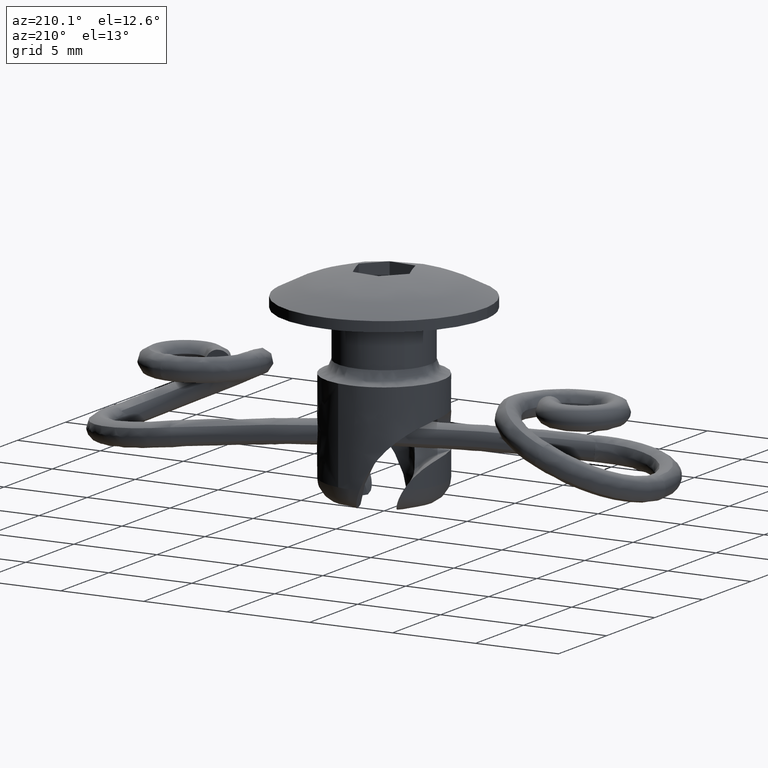
[diagram: clean part render]
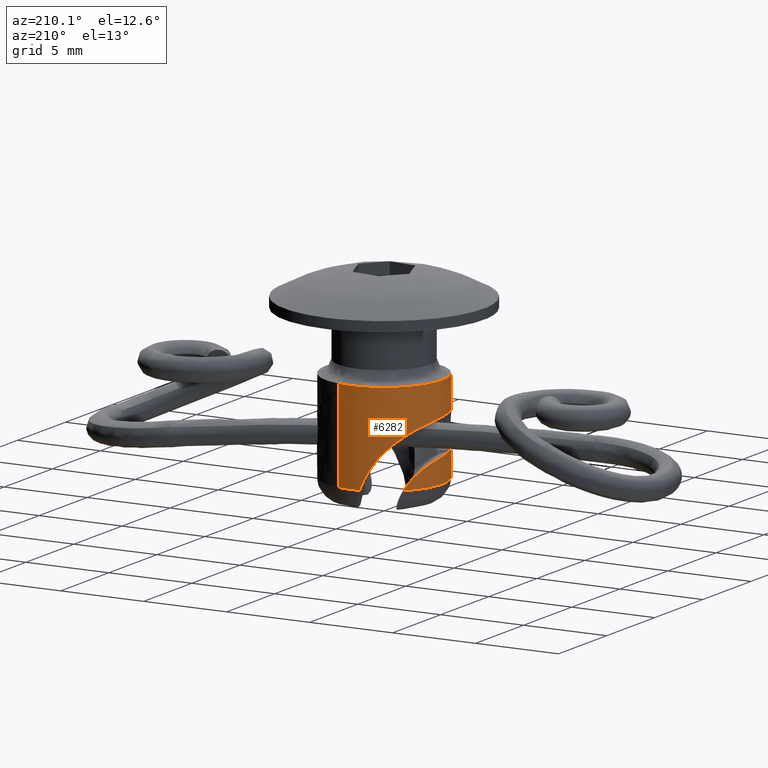
[diagram: same view with one face highlighted and labeled with its STEP entity id]
A machine part, auxiliary view. The second image highlights one B-rep face of the part: STEP entity #6282.
In plain terms, the highlighted face is a freeform B-spline surface patch.
Its self-contained STEP definition (entity closure, byte-faithful):
#5854=CARTESIAN_POINT('',(-3.408515846239265,0.794996812636851,3.251577999999965));
#5855=VERTEX_POINT('',#5854);
#5873=CARTESIAN_POINT('',(2.907825412374815,-1.947960876613850,3.251577999999967));
#5874=VERTEX_POINT('',#5873);
#5888=CARTESIAN_POINT('',(2.907823712721256,-1.947963380968242,-2.298425000000000));
#5889=VERTEX_POINT('',#5888);
#5890=CARTESIAN_POINT('',(2.907825412374815,-1.947960876613850,3.251577999999967));
#5891=CARTESIAN_POINT('',(2.907823712721256,-1.947963380968242,-2.298425000000000));
#5892=QUASI_UNIFORM_CURVE('',1,(#5890,#5891),.UNSPECIFIED.,.F.,.U.);
#5893=EDGE_CURVE('',#5874,#5889,#5892,.T.);
#6035=CARTESIAN_POINT('',(-3.408516577332525,0.794993612283438,-2.298425000000000));
#6036=VERTEX_POINT('',#6035);
#6052=CARTESIAN_POINT('',(-3.408515846239265,0.794996812636851,3.251577999999965));
#6053=CARTESIAN_POINT('',(-3.408516577332525,0.794993612283438,-2.298425000000000));
#6054=QUASI_UNIFORM_CURVE('',1,(#6052,#6053),.UNSPECIFIED.,.F.,.U.);
#6055=EDGE_CURVE('',#5855,#6036,#6054,.T.);
#6060=CARTESIAN_POINT('',(2.907824455280770,-1.947962287806331,3.390328074999983));
#6061=CARTESIAN_POINT('',(0.959862167474439,-4.855786743087101,3.390328074999983));
#6062=CARTESIAN_POINT('',(-1.947962287806331,-2.907824455280770,3.390328074999983));
#6063=CARTESIAN_POINT('',(-3.958080499734775,-1.561238878645187,3.390328074999982));
#6064=CARTESIAN_POINT('',(-3.408515836683732,0.794996810384028,3.390328074999983));
#6065=CARTESIAN_POINT('',(2.907824455280770,-1.947962287806331,-2.440643826875001));
#6066=CARTESIAN_POINT('',(0.959862167474439,-4.855786743087101,-2.440643826875000));
#6067=CARTESIAN_POINT('',(-1.947962287806331,-2.907824455280770,-2.440643826875001));
#6068=CARTESIAN_POINT('',(-3.958080499734775,-1.561238878645187,-2.440643826875001));
#6069=CARTESIAN_POINT('',(-3.408515836683732,0.794996810384028,-2.440643826875002));
#6077=(BOUNDED_SURFACE()B_SPLINE_SURFACE(2,1,((#6060,#6065),(#6061,#6066),(#6062,#6067),(#6063,#6068),(#6064,#6069)),.UNSPECIFIED.,.F.,.F.,.U.)B_SPLINE_SURFACE_WITH_KNOTS((3,2,3),(2,2),(0.0,5.798989905755564,10.206222234129790),(0.0,5.830971901874984),.UNSPECIFIED.)GEOMETRIC_REPRESENTATION_ITEM()RATIONAL_B_SPLINE_SURFACE(((1.0,1.0),(0.707106781186548,0.707106781186548),(1.0,1.0),(0.777401153701776,0.777401153701776),(0.893152553776853,0.893152553776853)))REPRESENTATION_ITEM('')SURFACE());
#6078=CARTESIAN_POINT('',(-3.500000039269895,0.0,3.251577999999965));
#6079=VERTEX_POINT('',#6078);
#6080=CARTESIAN_POINT('',(-3.500000039269895,0.0,3.251577999999965));
#6081=CARTESIAN_POINT('',(-3.500000039269895,0.402762174336322,3.251577999999965));
#6082=CARTESIAN_POINT('',(-3.408515846239265,0.794996812636851,3.251577999999965));
#6090=(BOUNDED_CURVE()B_SPLINE_CURVE(2,(#6080,#6081,#6082),.UNSPECIFIED.,.F.,.U.)B_SPLINE_CURVE_WITH_KNOTS((3,3),(0.0,0.038834074144333),.UNSPECIFIED.)CURVE()GEOMETRIC_REPRESENTATION_ITEM()RATIONAL_B_SPLINE_CURVE((1.0,0.954503052096904,0.923140758979486))REPRESENTATION_ITEM(''));
#6091=EDGE_CURVE('',#6079,#5855,#6090,.T.);
#6092=ORIENTED_EDGE('',*,*,#6091,.T.);
#6093=ORIENTED_EDGE('',*,*,#6055,.T.);
#6094=CARTESIAN_POINT('',(-3.459897316747310,-0.528309279692622,-2.298425000000000));
#6095=VERTEX_POINT('',#6094);
#6096=CARTESIAN_POINT('',(-3.459897316747310,-0.528309279692622,-2.298425000000000));
#6097=CARTESIAN_POINT('',(-3.561684013167019,0.138291800194744,-2.298425000000001));
#6098=CARTESIAN_POINT('',(-3.408516577332526,0.794993612283438,-2.298425000000001));
#6106=(BOUNDED_CURVE()B_SPLINE_CURVE(2,(#6096,#6097,#6098),.UNSPECIFIED.,.F.,.U.)B_SPLINE_CURVE_WITH_KNOTS((3,3),(0.0,0.156086623273908),.UNSPECIFIED.)CURVE()GEOMETRIC_REPRESENTATION_ITEM()RATIONAL_B_SPLINE_CURVE((1.0,0.941843152564109,0.919996328874314))REPRESENTATION_ITEM(''));
#6107=EDGE_CURVE('',#6095,#6036,#6106,.T.);
#6108=ORIENTED_EDGE('',*,*,#6107,.F.);
#6109=CARTESIAN_POINT('',(1.254288176771206,-3.267531378127195,1.351574999995246));
#6110=VERTEX_POINT('',#6109);
#6111=CARTESIAN_POINT('',(1.254288176771206,-3.267531378127195,1.351574999995246));
#6112=CARTESIAN_POINT('',(1.101160005406765,-3.326311794487662,1.351574998837264));
#6113=CARTESIAN_POINT('',(0.945762923950141,-3.373675377215122,1.349288494566302));
#6114=CARTESIAN_POINT('',(0.630633866917499,-3.446513308409384,1.339913747538645));
#6115=CARTESIAN_POINT('',(0.470901100661854,-3.471984132491330,1.332827274565041));
#6116=CARTESIAN_POINT('',(0.228032611613191,-3.493509216653556,1.317601414292670));
#6117=CARTESIAN_POINT('',(0.146192181078326,-3.497894007021392,1.311721623021134));
#6118=CARTESIAN_POINT('',(-0.016684825331217,-3.500907918636005,1.298294048865736));
#6119=CARTESIAN_POINT('',(-0.097661381558418,-3.499565850793191,1.290759077124677));
#6120=CARTESIAN_POINT('',(-0.339192328174756,-3.487254465925414,1.265360531103398));
#6121=CARTESIAN_POINT('',(-0.498356029403914,-3.468031572046396,1.244733748760221));
#6122=CARTESIAN_POINT('',(-0.734116231528175,-3.423079591665780,1.206421926317352));
#6123=CARTESIAN_POINT('',(-0.812203412832257,-3.405401099469859,1.192415497843184));
#6124=CARTESIAN_POINT('',(-0.967319985446281,-3.364628222826869,1.161525164726331));
#6125=CARTESIAN_POINT('',(-1.044455501968755,-3.341469688333355,1.144598555183151));
#6126=CARTESIAN_POINT('',(-1.270181629063231,-3.265251309077173,1.089838312734105));
#6127=CARTESIAN_POINT('',(-1.414461919028028,-3.205160989796881,1.047795469298972));
#6128=CARTESIAN_POINT('',(-1.690751086098153,-3.068406794372949,0.950297460754401));
#6129=CARTESIAN_POINT('',(-1.822783533150525,-2.991714083594022,0.894834410800318));
#6130=CARTESIAN_POINT('',(-2.074162398018134,-2.823250487177357,0.767670321400395));
#6131=CARTESIAN_POINT('',(-2.190286065450039,-2.733666603910849,0.697587030664217));
#6132=CARTESIAN_POINT('',(-2.405163610616871,-2.546659411072964,0.543378092234245));
#6133=CARTESIAN_POINT('',(-2.503908324413362,-2.449224044822806,0.459254466628814));
#6134=CARTESIAN_POINT('',(-2.639930954665946,-2.298984229476701,0.321658217676691));
#6135=CARTESIAN_POINT('',(-2.683294462201880,-2.248148310073917,0.273809076138016));
#6136=CARTESIAN_POINT('',(-2.765058072308654,-2.146786866862252,0.175531771712936));
#6137=CARTESIAN_POINT('',(-2.803617932975777,-2.096094359954361,0.124955630713278));
#6138=CARTESIAN_POINT('',(-2.912899965180591,-1.944364600649928,-0.031085920722878));
#6139=CARTESIAN_POINT('',(-2.977240711307082,-1.843680462941251,-0.140859363842419));
#6140=CARTESIAN_POINT('',(-3.091414319336658,-1.645076718179377,-0.372018921680366));
#6141=CARTESIAN_POINT('',(-3.141371004931514,-1.546772127010131,-0.493977660713145));
#6142=CARTESIAN_POINT('',(-3.270257197035197,-1.264231255342642,-0.869766668325979));
#6143=CARTESIAN_POINT('',(-3.329685867914584,-1.090532520732842,-1.135235191100540));
#6144=CARTESIAN_POINT('',(-3.394380702427332,-0.857144701619205,-1.555710809341995));
#6145=CARTESIAN_POINT('',(-3.411800479059488,-0.783882764392442,-1.699601494543263));
#6146=CARTESIAN_POINT('',(-3.440294643041646,-0.647477772808494,-1.995074335843939));
#6147=CARTESIAN_POINT('',(-3.451255752075076,-0.584902884180227,-2.145430863998851));
#6148=CARTESIAN_POINT('',(-3.459897316747310,-0.528309279692622,-2.298425000000000));
#6149=B_SPLINE_CURVE_WITH_KNOTS('',3,(#6111,#6112,#6113,#6114,#6115,#6116,#6117,#6118,#6119,#6120,#6121,#6122,#6123,#6124,#6125,#6126,#6127,#6128,#6129,#6130,#6131,#6132,#6133,#6134,#6135,#6136,#6137,#6138,#6139,#6140,#6141,#6142,#6143,#6144,#6145,#6146,#6147,#6148),.UNSPECIFIED.,.F.,.U.,(4,2,2,2,2,2,2,2,2,2,2,2,2,2,2,2,2,2,4),(0.0,0.062500000000000,0.125000000000000,0.156250000000000,0.187500000000000,0.250000000000000,0.281250000000000,0.312500000000000,0.375000000000000,0.437500000000000,0.500000000000000,0.562500000000000,0.593750000000000,0.625000000000000,0.687500000000000,0.750000000000000,0.875000000000000,0.937500000000000,1.0),.UNSPECIFIED.);
#6150=EDGE_CURVE('',#6110,#6095,#6149,.T.);
#6151=ORIENTED_EDGE('',*,*,#6150,.F.);
#6152=CARTESIAN_POINT('',(1.254288176768334,-3.267531378130785,-0.748425000002609));
#6153=VERTEX_POINT('',#6152);
#6154=CARTESIAN_POINT('',(1.254288176771206,-3.267531378127195,1.351574999995246));
#6155=CARTESIAN_POINT('',(1.318908165288665,-3.242726080732145,1.351575016105227));
#6156=CARTESIAN_POINT('',(1.382068298157908,-3.216284048772281,1.344797048942630));
#6157=CARTESIAN_POINT('',(1.474700495266460,-3.174335760144840,1.324554900996453));
#6158=CARTESIAN_POINT('',(1.505391081853866,-3.159889856225708,1.316055506638560));
#6159=CARTESIAN_POINT('',(1.565165666348491,-3.130712802172559,1.295859686196125));
#6160=CARTESIAN_POINT('',(1.594194346251140,-3.116016473117681,1.284207558969249));
#6161=CARTESIAN_POINT('',(1.678846678105321,-3.071730866550707,1.244732978596622));
#6162=CARTESIAN_POINT('',(1.732055463750840,-3.041935976414106,1.212438196283124));
#6163=CARTESIAN_POINT('',(1.832283370553798,-2.982637803036701,1.135537595652601));
#6164=CARTESIAN_POINT('',(1.877721124671557,-2.954080210003077,1.092147759747262));
#6165=CARTESIAN_POINT('',(1.939513594636680,-2.913570618089659,1.019936274230660));
#6166=CARTESIAN_POINT('',(1.959044235165123,-2.900456353143284,0.994666507224773));
#6167=CARTESIAN_POINT('',(1.995988797035281,-2.875157403331615,0.941655105414365));
#6168=CARTESIAN_POINT('',(2.013418866945733,-2.862958480622263,0.913847277308783));
#6169=CARTESIAN_POINT('',(2.061480528117968,-2.828753223951606,0.828446692193510));
#6170=CARTESIAN_POINT('',(2.088343699651283,-2.808838370384871,0.768353890052686));
#6171=CARTESIAN_POINT('',(2.121166070791633,-2.784033531211632,0.673370616295222));
#6172=CARTESIAN_POINT('',(2.130877767653592,-2.776593523994276,0.640789243324158));
#6173=CARTESIAN_POINT('',(2.147594111213176,-2.763684350943464,0.574380627280225));
#6174=CARTESIAN_POINT('',(2.154524078470738,-2.758274077335120,0.540890212742231));
#6175=CARTESIAN_POINT('',(2.171174074934752,-2.745214433452122,0.439575277616938));
#6176=CARTESIAN_POINT('',(2.176800985325748,-2.740718447579378,0.370889191236007));
#6177=CARTESIAN_POINT('',(2.176747358566871,-2.740761039490529,0.231278151698163));
#6178=CARTESIAN_POINT('',(2.171072111466765,-2.745295127950086,0.162724759687837));
#6179=CARTESIAN_POINT('',(2.154408901059548,-2.758364053801208,0.061675421060957));
#6180=CARTESIAN_POINT('',(2.147484372360710,-2.763769524019810,0.028291184657903));
#6181=CARTESIAN_POINT('',(2.130808639618601,-2.776646476013986,-0.037871179754974));
#6182=CARTESIAN_POINT('',(2.121039561458121,-2.784130153505533,-0.070631461653861));
#6183=CARTESIAN_POINT('',(2.088099846080408,-2.809020603730423,-0.165819056196050));
#6184=CARTESIAN_POINT('',(2.061163835895597,-2.828984470946357,-0.225949237171972));
#6185=CARTESIAN_POINT('',(2.013055673071619,-2.863213986766004,-0.311296992616534));
#6186=CARTESIAN_POINT('',(1.995621020457522,-2.875412877972128,-0.339071265930076));
#6187=CARTESIAN_POINT('',(1.958632366068593,-2.900734688089971,-0.392068233646810));
#6188=CARTESIAN_POINT('',(1.939084802285998,-2.913856094596836,-0.417321817964650));
#6189=CARTESIAN_POINT('',(1.877261807177213,-2.954372443833482,-0.489464508304374));
#6190=CARTESIAN_POINT('',(1.831840356703069,-2.982908919969058,-0.532773476785850));
#6191=CARTESIAN_POINT('',(1.731691715142538,-3.042142094147427,-0.609520937662498));
#6192=CARTESIAN_POINT('',(1.678379337631589,-3.071983215531146,-0.641831178138126));
#6193=CARTESIAN_POINT('',(1.593916523891863,-3.116157848588764,-0.681171837510821));
#6194=CARTESIAN_POINT('',(1.564980802877827,-3.130803694375379,-0.692774448442424));
#6195=CARTESIAN_POINT('',(1.505463678185097,-3.159853762400416,-0.712878671331812));
#6196=CARTESIAN_POINT('',(1.474706955448383,-3.174333843307136,-0.721406797338145));
#6197=CARTESIAN_POINT('',(1.381796510439384,-3.216405105743891,-0.741699810556832));
#6198=CARTESIAN_POINT('',(1.318655787701051,-3.242822959446721,-0.748425016057032));
#6199=CARTESIAN_POINT('',(1.254288176768334,-3.267531378130785,-0.748425000002609));
#6200=B_SPLINE_CURVE_WITH_KNOTS('',3,(#6154,#6155,#6156,#6157,#6158,#6159,#6160,#6161,#6162,#6163,#6164,#6165,#6166,#6167,#6168,#6169,#6170,#6171,#6172,#6173,#6174,#6175,#6176,#6177,#6178,#6179,#6180,#6181,#6182,#6183,#6184,#6185,#6186,#6187,#6188,#6189,#6190,#6191,#6192,#6193,#6194,#6195,#6196,#6197,#6198,#6199),.UNSPECIFIED.,.F.,.U.,(4,2,2,2,2,2,2,2,2,2,2,2,2,2,2,2,2,2,2,2,2,2,4),(0.0,0.062500000000000,0.093750000000000,0.125000000000000,0.187500000000000,0.250000000000000,0.281249999999999,0.312499999999999,0.374999999999999,0.406249999999999,0.437499999999999,0.499999999999999,0.562500000000000,0.593750000000000,0.625000000000000,0.687500000000000,0.718750000000000,0.750000000000000,0.812500000000000,0.875000000000000,0.906250000000000,0.937500000000000,1.0),.UNSPECIFIED.);
#6201=EDGE_CURVE('',#6110,#6153,#6200,.T.);
#6202=ORIENTED_EDGE('',*,*,#6201,.T.);
#6203=CARTESIAN_POINT('',(-2.408393904069760,-2.539613908222965,-2.298424999999550));
#6204=VERTEX_POINT('',#6203);
#6205=CARTESIAN_POINT('',(1.254288176768334,-3.267531378130785,-0.748425000002609));
#6206=CARTESIAN_POINT('',(1.080808516791880,-3.334124001501087,-0.748425001939531));
#6207=CARTESIAN_POINT('',(0.904432228796500,-3.386078131053088,-0.752768340559637));
#6208=CARTESIAN_POINT('',(0.546197757697933,-3.461963427820624,-0.770973188020519));
#6209=CARTESIAN_POINT('',(0.364154793346326,-3.485897916126325,-0.784838761042103));
#6210=CARTESIAN_POINT('',(-0.004642874428761,-3.504863968670966,-0.825998395240343));
#6211=CARTESIAN_POINT('',(-0.186329054614192,-3.499647649452042,-0.852757827695604));
#6212=CARTESIAN_POINT('',(-0.454243540887475,-3.471559585456168,-0.905762154860508));
#6213=CARTESIAN_POINT('',(-0.542774066777624,-3.458806394214296,-0.925593577335539));
#6214=CARTESIAN_POINT('',(-0.718130024869035,-3.426694417015562,-0.970447104463344));
#6215=CARTESIAN_POINT('',(-0.805110639590740,-3.407293709149539,-0.995518509325471));
#6216=CARTESIAN_POINT('',(-1.062214071711321,-3.339627988727710,-1.079829795055214));
#6217=CARTESIAN_POINT('',(-1.223660688545142,-3.283255012670626,-1.146520240950321));
#6218=CARTESIAN_POINT('',(-1.450773339446091,-3.186225676308139,-1.266046864191130));
#6219=CARTESIAN_POINT('',(-1.523961729379245,-3.151798840074425,-1.309145527792442));
#6220=CARTESIAN_POINT('',(-1.629905350513129,-3.097576870987849,-1.379238998355098));
#6221=CARTESIAN_POINT('',(-1.664579751756364,-3.079072741766248,-1.403511793696544));
#6222=CARTESIAN_POINT('',(-1.732633676185897,-3.041298282508926,-1.453977483171645));
#6223=CARTESIAN_POINT('',(-1.766059490597148,-3.021995791700213,-1.480218237642530));
#6224=CARTESIAN_POINT('',(-1.927956506824257,-2.925025927447131,-1.614784099608831));
#6225=CARTESIAN_POINT('',(-2.042402187270057,-2.845173649116827,-1.734290780310270));
#6226=CARTESIAN_POINT('',(-2.194339954692603,-2.727448847067835,-1.932224073603313));
#6227=CARTESIAN_POINT('',(-2.241686721720204,-2.688540820805871,-2.001318025508653));
#6228=CARTESIAN_POINT('',(-2.330139502032304,-2.612252094370841,-2.145962405989109));
#6229=CARTESIAN_POINT('',(-2.370919568013140,-2.575151999832864,-2.220998427570238));
#6230=CARTESIAN_POINT('',(-2.408393904069760,-2.539613908222965,-2.298424999999550));
#6231=B_SPLINE_CURVE_WITH_KNOTS('',3,(#6205,#6206,#6207,#6208,#6209,#6210,#6211,#6212,#6213,#6214,#6215,#6216,#6217,#6218,#6219,#6220,#6221,#6222,#6223,#6224,#6225,#6226,#6227,#6228,#6229,#6230),.UNSPECIFIED.,.F.,.U.,(4,2,2,2,2,2,2,2,2,2,2,2,4),(0.0,0.125000000000000,0.250000000000000,0.375000000000001,0.437500000000001,0.500000000000001,0.625000000000001,0.687500000000001,0.718750000000001,0.750000000000001,0.875000000000000,0.937500000000000,1.0),.UNSPECIFIED.);
#6232=EDGE_CURVE('',#6153,#6204,#6231,.T.);
#6233=ORIENTED_EDGE('',*,*,#6232,.T.);
#6234=CARTESIAN_POINT('',(2.907823712721255,-1.947963380968242,-2.298425000000000));
#6235=CARTESIAN_POINT('',(2.411632894078871,-2.688652554860462,-2.298425000000001));
#6236=CARTESIAN_POINT('',(1.621558822153701,-3.101700660330637,-2.298425000000000));
#6237=CARTESIAN_POINT('',(-0.594184845413733,-4.260084103880655,-2.298425000000001));
#6238=CARTESIAN_POINT('',(-2.408393904069760,-2.539613908222965,-2.298424999999550));
#6246=(BOUNDED_CURVE()B_SPLINE_CURVE(2,(#6234,#6235,#6236,#6237,#6238),.UNSPECIFIED.,.F.,.U.)B_SPLINE_CURVE_WITH_KNOTS((3,2,3),(0.297432083567878,0.500000000000000,1.0),.UNSPECIFIED.)CURVE()GEOMETRIC_REPRESENTATION_ITEM()RATIONAL_B_SPLINE_CURVE((0.910204693586316,0.924524528981091,1.0,0.813703294311664,1.0))REPRESENTATION_ITEM(''));
#6247=EDGE_CURVE('',#5889,#6204,#6246,.T.);
#6248=ORIENTED_EDGE('',*,*,#6247,.F.);
#6249=ORIENTED_EDGE('',*,*,#5893,.F.);
#6250=CARTESIAN_POINT('',(0.404124807247604,-3.476590774307443,3.251577999999983));
#6251=VERTEX_POINT('',#6250);
#6252=CARTESIAN_POINT('',(2.907825412374815,-1.947960876613850,3.251577999999967));
#6253=CARTESIAN_POINT('',(2.008744507738889,-3.290067059362215,3.251577999999973));
#6254=CARTESIAN_POINT('',(0.404124807247604,-3.476590774307443,3.251577999999982));
#6262=(BOUNDED_CURVE()B_SPLINE_CURVE(2,(#6252,#6253,#6254),.UNSPECIFIED.,.F.,.U.)B_SPLINE_CURVE_WITH_KNOTS((3,3),(0.595459053685840,0.729999999988419),.UNSPECIFIED.)CURVE()GEOMETRIC_REPRESENTATION_ITEM()RATIONAL_B_SPLINE_CURVE((0.861732539255827,0.824481518611241,0.956886118167867))REPRESENTATION_ITEM(''));
#6263=EDGE_CURVE('',#5874,#6251,#6262,.T.);
#6264=ORIENTED_EDGE('',*,*,#6263,.T.);
#6265=CARTESIAN_POINT('',(0.404124807247604,-3.476590774307443,3.251577999999982));
#6266=CARTESIAN_POINT('',(0.202740404237512,-3.500000039269895,3.251577999999964));
#6267=CARTESIAN_POINT('',(0.0,-3.500000039269895,3.251577999999965));
#6268=CARTESIAN_POINT('',(-3.500000039269896,-3.500000039269896,3.251577999999965));
#6269=CARTESIAN_POINT('',(-3.500000039269895,0.0,3.251577999999965));
#6277=(BOUNDED_CURVE()B_SPLINE_CURVE(2,(#6265,#6266,#6267,#6268,#6269),.UNSPECIFIED.,.F.,.U.)B_SPLINE_CURVE_WITH_KNOTS((3,2,3),(0.729999999988420,0.750000000000000,1.0),.UNSPECIFIED.)CURVE()GEOMETRIC_REPRESENTATION_ITEM()RATIONAL_B_SPLINE_CURVE((0.956886118167868,0.976568542481357,1.0,0.707106781186548,1.0))REPRESENTATION_ITEM(''));
#6278=EDGE_CURVE('',#6251,#6079,#6277,.T.);
#6279=ORIENTED_EDGE('',*,*,#6278,.T.);
#6280=EDGE_LOOP('',(#6092,#6093,#6108,#6151,#6202,#6233,#6248,#6249,#6264,#6279));
#6281=FACE_OUTER_BOUND('',#6280,.T.);
#6282=ADVANCED_FACE('',(#6281),#6077,.T.);